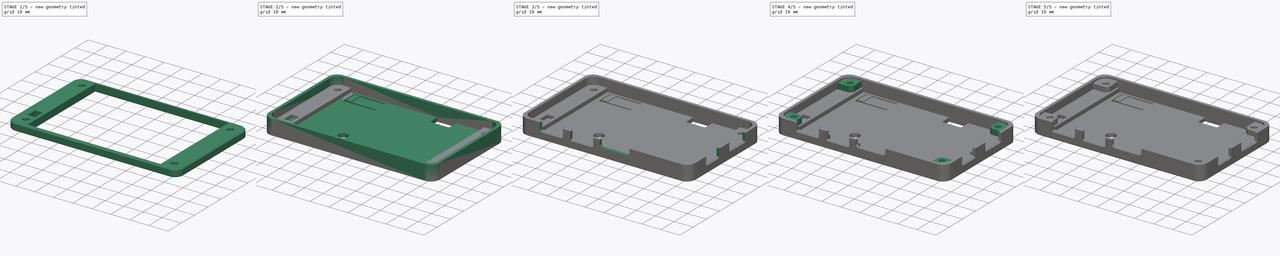
[diagram: build sequence overview — one tinted view per stage of 5, left to right]
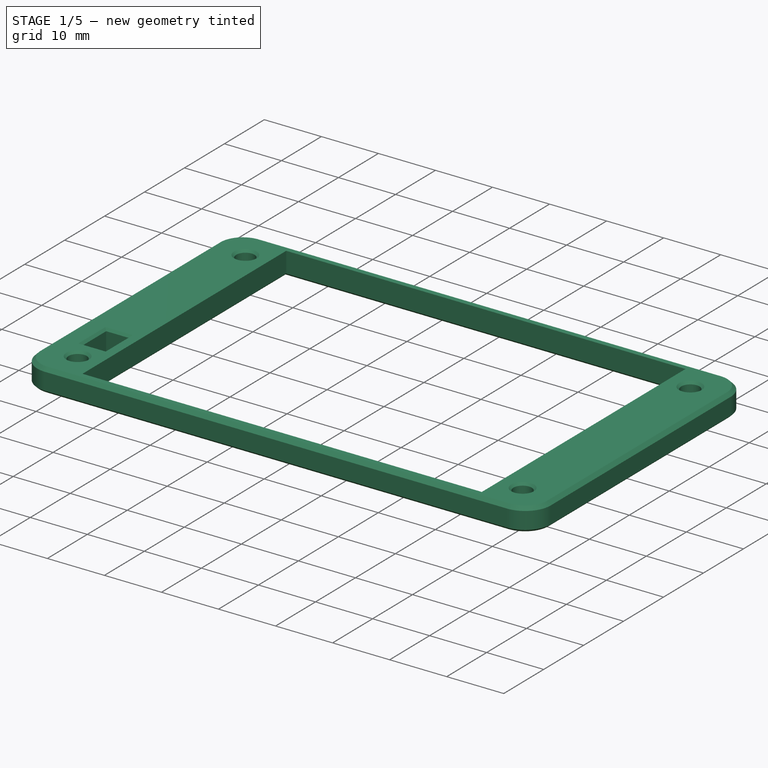
[diagram: stage 1 of 5 — iso view after this stage's code; geometry added in this stage tinted green]
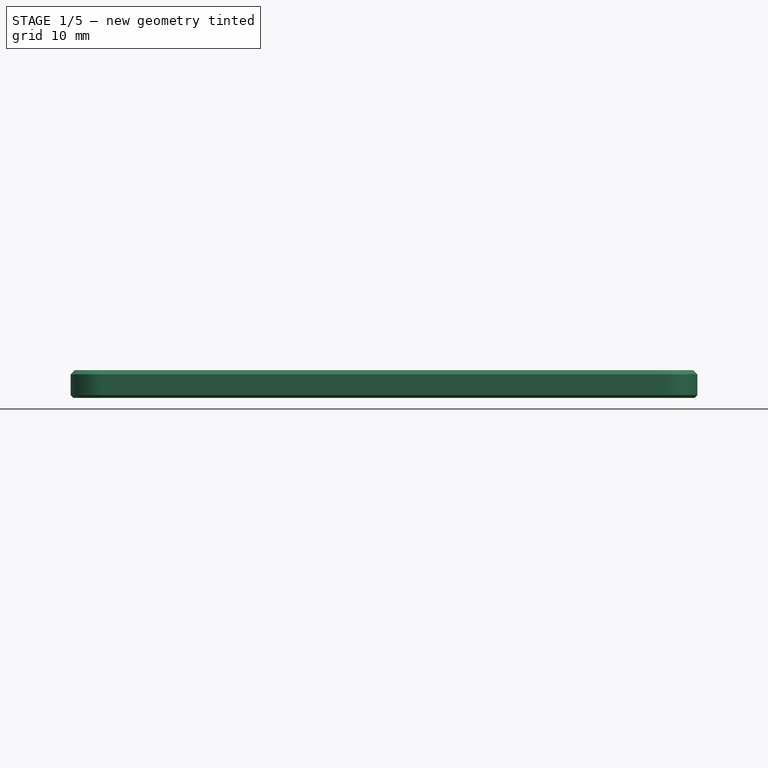
[diagram: stage 1 of 5 — front view after this stage's code; geometry added in this stage tinted green]
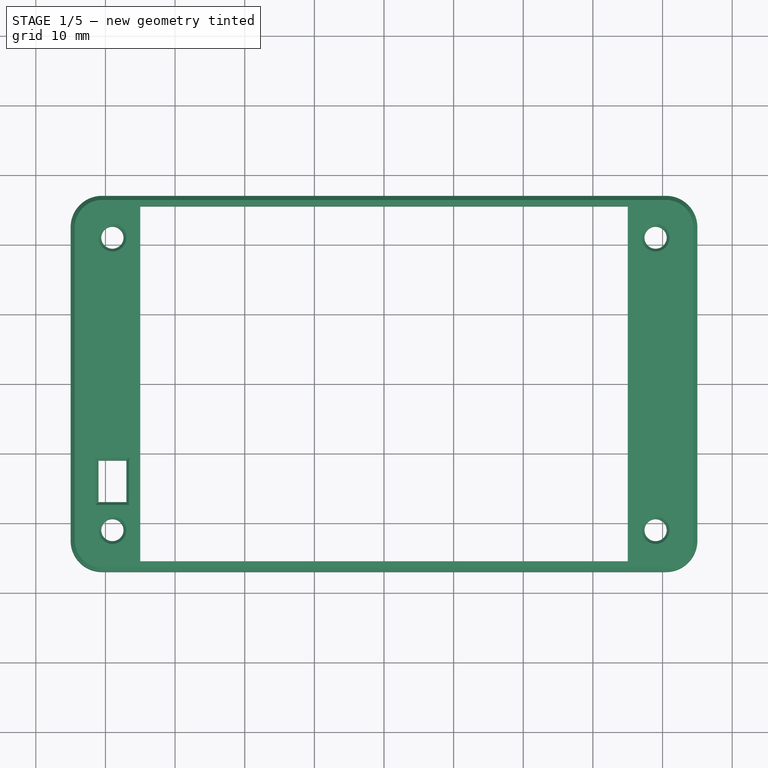
[diagram: stage 1 of 5 — top view after this stage's code; geometry added in this stage tinted green]
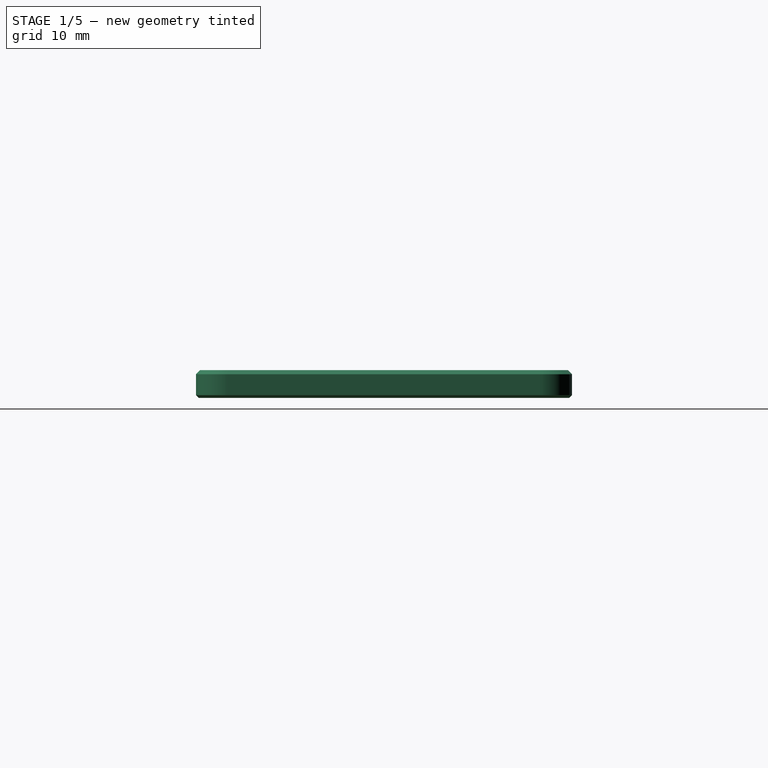
[diagram: stage 1 of 5 — right view after this stage's code; geometry added in this stage tinted green]
FCSTD DOCUMENT  (FreeCAD 1.0R39109 (Git))
Label: CYD_Case_V1
License: All rights reserved
LicenseURL: https://en.wikipedia.org/wiki/All_rights_reserved
objects: Sketcher::SketchObject×11, PartDesign::Chamfer×9, PartDesign::Pocket×6, PartDesign::Pad×5, PartDesign::Body×2, Part::Feature×1, App::Part×1
note: 85 computed .brp shape members not serialized (recipe doc carries the construction recipe); baked Part::Feature solids carry a one-line shape summary decoded from their .brp

FEATURE [Sketcher::SketchObject] Sketch017
  ArcFitTolerance = 1e-06
  AttachmentSupport = -> [XY_Plane002]
  FullyConstrained = true
  MakeInternals = false
  MapMode = 5
  sketch-geometry (13):
    g0: LineSegment StartX=-40.5 StartY=-27 StartZ=0 EndX=40.5 EndY=-27 EndZ=0
    g1: LineSegment StartX=45 StartY=-22.5 StartZ=0 EndX=45 EndY=22.5 EndZ=0
    g2: LineSegment StartX=40.5 StartY=27 StartZ=0 EndX=-40.5 EndY=27 EndZ=0
    g3: LineSegment StartX=-45 StartY=22.5 StartZ=0 EndX=-45 EndY=-22.5 EndZ=0
    g4: GeomPoint [constr] X=0 Y=0 Z=0
    g5: ArcOfCircle CenterX=-40.5 CenterY=22.5 CenterZ=0 NormalX=0 NormalY=0 NormalZ=1 AngleXU=0 Radius=4.5 StartAngle=1.5708 EndAngle=3.14159
    g6: GeomPoint [constr] X=-45 Y=27 Z=0
    g7: ArcOfCircle CenterX=-40.5 CenterY=-22.5 CenterZ=0 NormalX=0 NormalY=0 NormalZ=1 AngleXU=0 Radius=4.5 StartAngle=3.14159 EndAngle=4.71239
    g8: GeomPoint [constr] X=-45 Y=-27 Z=0
    g9: ArcOfCircle CenterX=40.5 CenterY=-22.5 CenterZ=0 NormalX=0 NormalY=0 NormalZ=1 AngleXU=0 Radius=4.5 StartAngle=4.71239 EndAngle=6.28319
    g10: GeomPoint [constr] X=45 Y=-27 Z=0
    g11: ArcOfCircle CenterX=40.5 CenterY=22.5 CenterZ=0 NormalX=0 NormalY=0 NormalZ=1 AngleXU=0 Radius=4.5 StartAngle=0 EndAngle=1.5708
    g12: GeomPoint [constr] X=45 Y=27 Z=0
  constraints (28):
    c: Horizontal(g0)
    c: Horizontal(g2)
    c: Vertical(g1)
    c: Vertical(g3)
    c: Symmetric(g12,g8,g4)
    c: Distance(g10,g8) = 90
    c: Distance(g8,g6) = 54
    c: Coincident(g4,g-1)
    c: PointOnObject(g6,g2)
    c: PointOnObject(g6,g3)
    c: Tangent(g2,g5) = -1.5708
    c: Tangent(g3,g5) = -1.5708
    c: PointOnObject(g8,g3)
    c: PointOnObject(g8,g0)
    c: Tangent(g3,g7) = -1.5708
    c: Tangent(g0,g7) = -1.5708
    c: PointOnObject(g10,g0)
    c: PointOnObject(g10,g1)
    c: Tangent(g0,g9) = -1.5708
    c: Tangent(g1,g9) = -1.5708
    c: PointOnObject(g12,g1)
    c: PointOnObject(g12,g2)
    c: Tangent(g1,g11) = -1.5708
    c: Tangent(g2,g11) = -1.5708
    c: Radius(g5) = 4.5
    c: Equal(g11,g5)
    c: Equal(g9,g5)
    c: Equal(g7,g5)
FEATURE [PartDesign::Pad] Pad007  label="Main_Pad001"
  Direction = (0,0,1)
  Length = 4
  Length2 = 10
  Profile = -> Sketch017
  ReferenceAxis = -> Sketch017 [N_Axis]
  Refine = true
  Suppressed = false
  Type = 0
FEATURE [Sketcher::SketchObject] Sketch018
  ArcFitTolerance = 1e-06
  AttachmentSupport = -> [Pad007]
  FullyConstrained = true
  MakeInternals = false
  MapMode = 5
  Placement = pos=(0,0,0) rot=(1,0,0;3.14159rad)
  sketch-geometry (18):
    g0: LineSegment StartX=-35 StartY=-25.5 StartZ=0 EndX=35 EndY=-25.5 EndZ=0
    g1: LineSegment StartX=35 StartY=-25.5 StartZ=0 EndX=35 EndY=25.5 EndZ=0
    g2: LineSegment StartX=35 StartY=25.5 StartZ=0 EndX=-35 EndY=25.5 EndZ=0
    g3: LineSegment StartX=-35 StartY=25.5 StartZ=0 EndX=-35 EndY=-25.5 EndZ=0
    g4: GeomPoint [constr] X=0 Y=0 Z=0
    g5: LineSegment StartX=-41 StartY=11 StartZ=0 EndX=-37 EndY=11 EndZ=0
    g6: LineSegment StartX=-37 StartY=11 StartZ=0 EndX=-37 EndY=17 EndZ=0
    g7: LineSegment StartX=-37 StartY=17 StartZ=0 EndX=-41 EndY=17 EndZ=0
    g8: LineSegment StartX=-41 StartY=17 StartZ=0 EndX=-41 EndY=11 EndZ=0
    g9: LineSegment [constr] StartX=-39 StartY=-21 StartZ=0 EndX=39 EndY=-21 EndZ=0
    g10: LineSegment [constr] StartX=39 StartY=-21 StartZ=0 EndX=39 EndY=21 EndZ=0
    g11: LineSegment [constr] StartX=39 StartY=21 StartZ=0 EndX=-39 EndY=21 EndZ=0
    g12: LineSegment [constr] StartX=-39 StartY=21 StartZ=0 EndX=-39 EndY=-21 EndZ=0
    g13: GeomPoint [constr] X=0 Y=0 Z=0
    g14: Circle CenterX=-39 CenterY=21 CenterZ=0 NormalX=0 NormalY=0 NormalZ=1 AngleXU=0 Radius=1.6
    g15: Circle CenterX=39 CenterY=21 CenterZ=0 NormalX=0 NormalY=0 NormalZ=1 AngleXU=0 Radius=1.6
    g16: Circle CenterX=39 CenterY=-21 CenterZ=0 NormalX=0 NormalY=0 NormalZ=1 AngleXU=0 Radius=1.6
    g17: Circle CenterX=-39 CenterY=-21 CenterZ=0 NormalX=0 NormalY=0 NormalZ=1 AngleXU=0 Radius=1.6
  constraints (44):
    c: Coincident(g0,g1)
    c: Coincident(g1,g2)
    c: Coincident(g2,g3)
    c: Coincident(g3,g0)
    c: Horizontal(g0)
    c: Horizontal(g2)
    c: Vertical(g1)
    c: Vertical(g3)
    c: Symmetric(g2,g0,g4)
    c: Distance(g1,g3) = 70
    c: Distance(g0,g2) = 51
    c: Coincident(g4,g-1)
    c: Coincident(g5,g6)
    c: Coincident(g6,g7)
    c: Coincident(g7,g8)
    c: Coincident(g8,g5)
    c: Horizontal(g5)
    c: Horizontal(g7)
    c: Vertical(g6)
    c: Vertical(g8)
    c: Distance(g6,g8) = 4
    c: Distance(g5,g7) = 6
    c: Coincident(g9,g10)
    c: Coincident(g10,g11)
    c: Coincident(g11,g12)
    c: Coincident(g12,g9)
    c: Horizontal(g9)
    c: Horizontal(g11)
    c: Vertical(g10)
    c: Vertical(g12)
    c: Symmetric(g11,g9,g13)
    c: Distance(g10,g12) = 78
    c: Distance(g9,g11) = 42
    c: Coincident(g13,g4)
    c: Coincident(g14,g11)
    c: Coincident(g15,g10)
    c: Coincident(g16,g9)
    c: Coincident(g17,g9)
    c: Diameter(g14) = 3.2
    c: Equal(g15,g14)
    c: Equal(g16,g14)
    c: Equal(g17,g14)
    c: DistanceY(g7,g2) = 8.5
    c: DistanceX(g6,g2) = 2
FEATURE [PartDesign::Pocket] Pocket005  label="IO_Screen_Screws"
  BaseFeature = -> Pad007
  Direction = (0,0,1)
  Length = 0
  Length2 = 5
  Profile = -> Sketch018
  ReferenceAxis = -> Sketch018 [N_Axis]
  Refine = true
  Suppressed = false
  Type = 3
  UpToFace = -> Pad007 [Face10]
FEATURE [PartDesign::Chamfer] Chamfer006  label="Print_Comp_Chamfer_Top"
  Angle = 45
  Base = -> Pocket005 [Face4,Edge33,Edge35,Edge34,Edge37,Edge36,Edge39,Edge44,Edge38]
  BaseFeature = -> Pocket005
  ChamferType = 0
  FlipDirection = false
  Refine = true
  Size = 0.4
  Size2 = 1
  SupportTransform = false
  Suppressed = false
  UseAllEdges = false
FEATURE [PartDesign::Body] Body  label="Base"
  AllowCompound = false
  Group = -> [Sketch,Pad,Sketch001,Pocket,Sketch002,Pocket001,Sketch003,Sketch012,Pad004,Pocket002,Chamfer,Sketch013,Pocket003,Chamfer002,Sketch014,Pad005,Sketch015,Pad006,Sketch016,Pocket004,Chamfer003,Chamfer004,Chamfer005,Chamfer007,Chamfer008]
  Origin = -> Origin001
  Tip = -> Chamfer008
FEATURE [PartDesign::Chamfer] Chamfer009  label="Outside_Chamfer_Top"
  Angle = 45
  Base = -> Chamfer006 [Edge13]
  BaseFeature = -> Chamfer006
  ChamferType = 0
  FlipDirection = false
  Refine = true
  Size = 0.6
  Size2 = 1
  SupportTransform = false
  Suppressed = false
  UseAllEdges = false
FEATURE [PartDesign::Body] Body001  label="Top"
  AllowCompound = false
  Group = -> [Sketch017,Pad007,Sketch018,Pocket005,Chamfer006,Chamfer009]
  Origin = -> Origin002
  Placement = pos=(0,0,8.5) rot=(0,0,1;0rad)
  Tip = -> Chamfer009
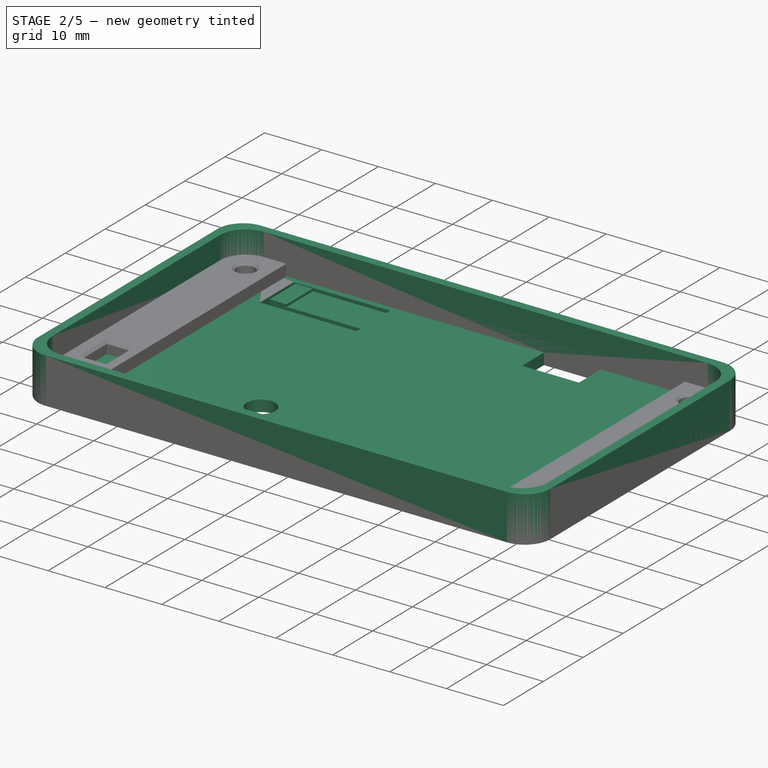
[diagram: stage 2 of 5 — iso view after this stage's code; geometry added in this stage tinted green]
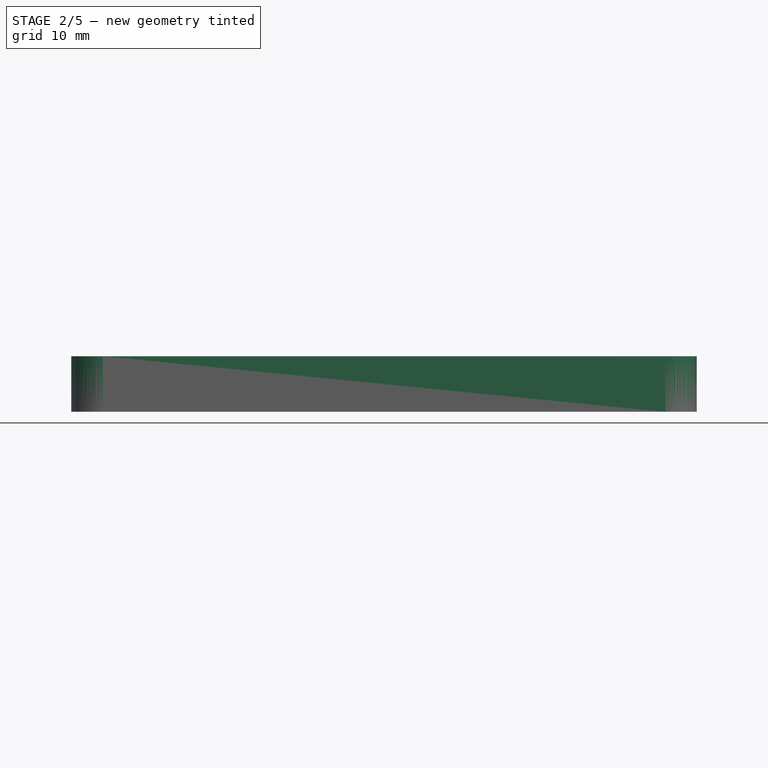
[diagram: stage 2 of 5 — front view after this stage's code; geometry added in this stage tinted green]
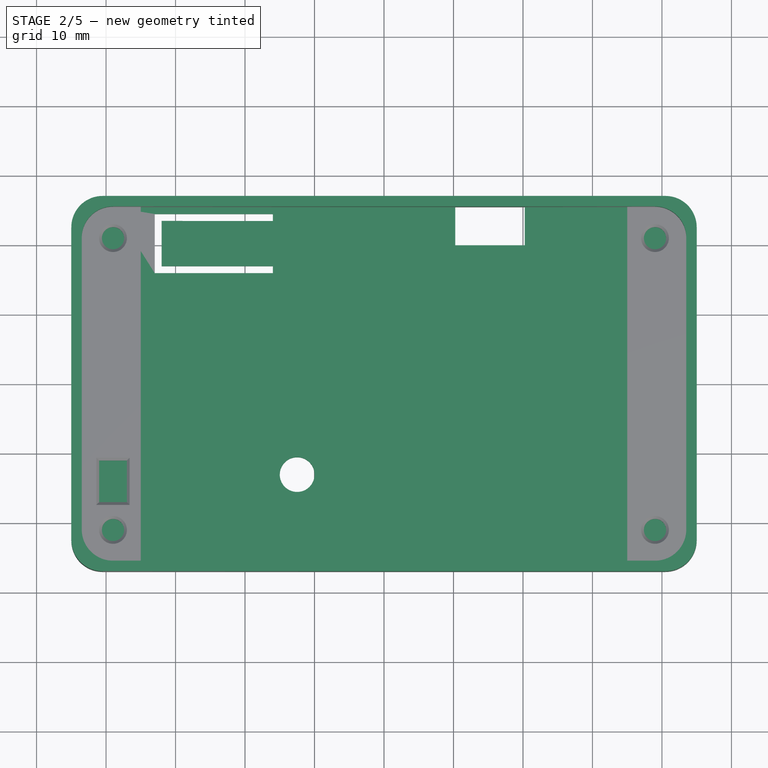
[diagram: stage 2 of 5 — top view after this stage's code; geometry added in this stage tinted green]
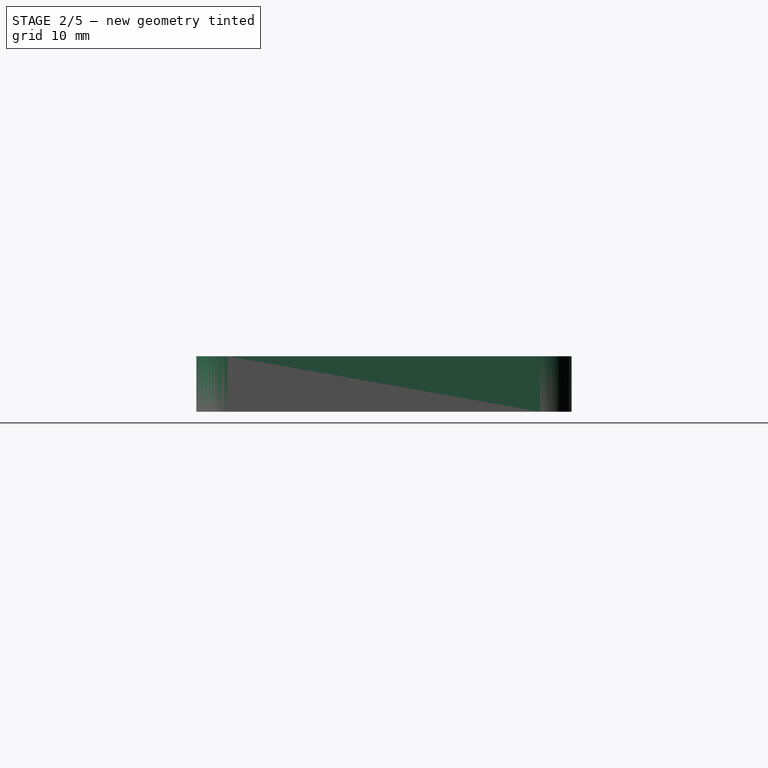
[diagram: stage 2 of 5 — right view after this stage's code; geometry added in this stage tinted green]
FEATURE [Sketcher::SketchObject] Sketch
  ArcFitTolerance = 1e-06
  AttachmentSupport = -> [XY_Plane001]
  FullyConstrained = true
  MakeInternals = false
  MapMode = 5
  sketch-geometry (13):
    g0: LineSegment StartX=-40.5 StartY=-27 StartZ=0 EndX=40.5 EndY=-27 EndZ=0
    g1: LineSegment StartX=45 StartY=-22.5 StartZ=0 EndX=45 EndY=22.5 EndZ=0
    g2: LineSegment StartX=40.5 StartY=27 StartZ=0 EndX=-40.5 EndY=27 EndZ=0
    g3: LineSegment StartX=-45 StartY=22.5 StartZ=0 EndX=-45 EndY=-22.5 EndZ=0
    g4: GeomPoint [constr] X=0 Y=0 Z=0
    g5: ArcOfCircle CenterX=-40.5 CenterY=22.5 CenterZ=0 NormalX=0 NormalY=0 NormalZ=1 AngleXU=0 Radius=4.5 StartAngle=1.5708 EndAngle=3.14159
    g6: GeomPoint [constr] X=-45 Y=27 Z=0
    g7: ArcOfCircle CenterX=40.5 CenterY=22.5 CenterZ=0 NormalX=0 NormalY=0 NormalZ=1 AngleXU=0 Radius=4.5 StartAngle=7.66e-14 EndAngle=1.5708
    g8: GeomPoint [constr] X=45 Y=27 Z=0
    g9: ArcOfCircle CenterX=40.5 CenterY=-22.5 CenterZ=0 NormalX=0 NormalY=0 NormalZ=1 AngleXU=0 Radius=4.5 StartAngle=4.71239 EndAngle=6.28319
    g10: GeomPoint [constr] X=45 Y=-27 Z=0
    g11: ArcOfCircle CenterX=-40.5 CenterY=-22.5 CenterZ=0 NormalX=0 NormalY=0 NormalZ=1 AngleXU=0 Radius=4.5 StartAngle=3.14159 EndAngle=4.71239
    g12: GeomPoint [constr] X=-45 Y=-27 Z=0
  constraints (28):
    c: Horizontal(g0)
    c: Horizontal(g2)
    c: Vertical(g1)
    c: Vertical(g3)
    c: Symmetric(g8,g12,g4)
    c: Distance(g10,g12) = 90
    c: Distance(g12,g6) = 54
    c: Coincident(g4,g-1)
    c: PointOnObject(g6,g2)
    c: PointOnObject(g6,g3)
    c: Tangent(g2,g5) = -1.5708
    c: Tangent(g3,g5) = -1.5708
    c: PointOnObject(g8,g2)
    c: PointOnObject(g8,g1)
    c: Tangent(g2,g7) = -1.5708
    c: Tangent(g1,g7) = -1.5708
    c: PointOnObject(g10,g0)
    c: PointOnObject(g10,g1)
    c: Tangent(g0,g9) = -1.5708
    c: Tangent(g1,g9) = -1.5708
    c: PointOnObject(g12,g0)
    c: PointOnObject(g12,g3)
    c: Tangent(g0,g11) = -1.5708
    c: Tangent(g3,g11) = -1.5708
    c: Radius(g5) = 4.5
    c: Equal(g7,g5)
    c: Equal(g9,g5)
    c: Equal(g11,g5)
FEATURE [PartDesign::Pad] Pad  label="Main_Pad"
  Direction = (0,0,1)
  Length = 8
  Length2 = 10
  Profile = -> Sketch
  ReferenceAxis = -> Sketch [N_Axis]
  Refine = true
  Suppressed = false
  Type = 0
FEATURE [Sketcher::SketchObject] Sketch001
  ArcFitTolerance = 1e-06
  AttachmentSupport = -> [Pad]
  FullyConstrained = true
  MakeInternals = false
  MapMode = 5
  Placement = pos=(0,0,8) rot=(0,0,1;0rad)
  sketch-geometry (13):
    g0: LineSegment StartX=-39 StartY=-25.5 StartZ=0 EndX=39 EndY=-25.5 EndZ=0
    g1: LineSegment StartX=43.5 StartY=-21 StartZ=0 EndX=43.5 EndY=21 EndZ=0
    g2: LineSegment StartX=39 StartY=25.5 StartZ=0 EndX=-39 EndY=25.5 EndZ=0
    g3: LineSegment StartX=-43.5 StartY=21 StartZ=0 EndX=-43.5 EndY=-21 EndZ=0
    g4: GeomPoint [constr] X=0 Y=0 Z=0
    g5: ArcOfCircle CenterX=-39 CenterY=21 CenterZ=0 NormalX=0 NormalY=0 NormalZ=1 AngleXU=0 Radius=4.5 StartAngle=1.5708 EndAngle=3.14159
    g6: GeomPoint [constr] X=-43.5 Y=25.5 Z=0
    g7: ArcOfCircle CenterX=-39 CenterY=-21 CenterZ=0 NormalX=0 NormalY=0 NormalZ=1 AngleXU=0 Radius=4.5 StartAngle=3.14159 EndAngle=4.71239
    g8: GeomPoint [constr] X=-43.5 Y=-25.5 Z=0
    g9: ArcOfCircle CenterX=39 CenterY=-21 CenterZ=0 NormalX=0 NormalY=0 NormalZ=1 AngleXU=0 Radius=4.5 StartAngle=4.71239 EndAngle=6.28319
    g10: GeomPoint [constr] X=43.5 Y=-25.5 Z=0
    g11: ArcOfCircle CenterX=39 CenterY=21 CenterZ=0 NormalX=0 NormalY=0 NormalZ=1 AngleXU=0 Radius=4.5 StartAngle=1e-16 EndAngle=1.5708
    g12: GeomPoint [constr] X=43.5 Y=25.5 Z=0
  constraints (28):
    c: Horizontal(g0)
    c: Horizontal(g2)
    c: Vertical(g1)
    c: Vertical(g3)
    c: Symmetric(g12,g8,g4)
    c: Distance(g10,g8) = 87
    c: Distance(g8,g6) = 51
    c: Coincident(g4,g-1)
    c: PointOnObject(g6,g2)
    c: PointOnObject(g6,g3)
    c: Tangent(g2,g5) = -1.5708
    c: Tangent(g3,g5) = -1.5708
    c: PointOnObject(g8,g3)
    c: PointOnObject(g8,g0)
    c: Tangent(g3,g7) = -1.5708
    c: Tangent(g0,g7) = -1.5708
    c: PointOnObject(g10,g0)
    c: PointOnObject(g10,g1)
    c: Tangent(g0,g9) = -1.5708
    c: Tangent(g1,g9) = -1.5708
    c: PointOnObject(g12,g1)
    c: PointOnObject(g12,g2)
    c: Tangent(g1,g11) = -1.5708
    c: Tangent(g2,g11) = -1.5708
    c: Radius(g5) = 4.5
    c: Equal(g11,g5)
    c: Equal(g9,g5)
    c: Equal(g7,g5)
FEATURE [PartDesign::Pocket] Pocket  label="Main_Pocket"
  BaseFeature = -> Pad
  Direction = (0,0,-1)
  Length = 6
  Length2 = 5
  Profile = -> Sketch001
  ReferenceAxis = -> Sketch001 [N_Axis]
  Refine = true
  Suppressed = false
  Type = 0
FEATURE [Sketcher::SketchObject] Sketch002
  ArcFitTolerance = 1e-06
  AttachmentSupport = -> [Pocket]
  FullyConstrained = true
  MakeInternals = false
  MapMode = 5
  Placement = pos=(0,0,0) rot=(1,0,0;3.14159rad)
  sketch-geometry (14):
    g0: LineSegment StartX=-16 StartY=-23.5 StartZ=0 EndX=-32 EndY=-23.5 EndZ=0
    g1: LineSegment StartX=-32 StartY=-23.5 StartZ=0 EndX=-32 EndY=-17 EndZ=0
    g2: LineSegment StartX=-32 StartY=-17 StartZ=0 EndX=-16 EndY=-17 EndZ=0
    g3: LineSegment StartX=-16 StartY=-17 StartZ=0 EndX=-16 EndY=-16 EndZ=0
    g4: LineSegment StartX=-16 StartY=-16 StartZ=0 EndX=-33 EndY=-16 EndZ=0
    g5: LineSegment StartX=-33 StartY=-16 StartZ=0 EndX=-33 EndY=-24.5 EndZ=0
    g6: LineSegment StartX=-33 StartY=-24.5 StartZ=0 EndX=-16 EndY=-24.5 EndZ=0
    g7: LineSegment StartX=-16 StartY=-24.5 StartZ=0 EndX=-16 EndY=-23.5 EndZ=0
    g8: Circle CenterX=-12.5 CenterY=13 CenterZ=0 NormalX=0 NormalY=0 NormalZ=1 AngleXU=0 Radius=2.5
    g9: GeomPoint [constr] X=0 Y=0 Z=0
    g10: LineSegment StartX=10.25 StartY=-20 StartZ=0 EndX=10.25 EndY=-25.5 EndZ=0
    g11: LineSegment StartX=10.25 StartY=-25.5 StartZ=0 EndX=20.25 EndY=-25.5 EndZ=0
    g12: LineSegment StartX=20.25 StartY=-25.5 StartZ=0 EndX=20.25 EndY=-20 EndZ=0
    g13: LineSegment StartX=20.25 StartY=-20 StartZ=0 EndX=10.25 EndY=-20 EndZ=0
  constraints (40):
    c: Horizontal(g0)
    c: Coincident(g0,g1)
    c: Vertical(g1)
    c: Coincident(g1,g2)
    c: Horizontal(g2)
    c: Coincident(g2,g3)
    c: Vertical(g3)
    c: Coincident(g3,g4)
    c: Horizontal(g4)
    c: Coincident(g4,g5)
    c: Vertical(g5)
    c: Coincident(g5,g6)
    c: Horizontal(g6)
    c: Coincident(g6,g7)
    c: Coincident(g7,g0)
    c: Vertical(g7)
    c: Distance(g-2,g1) = 32
    c: Distance(g1,g5) = 1
    c: Distance(g-2,g3) = 16
    c: Distance(g-2,g7) = 16
    c: DistanceY(g3,g3) = 1
    c: DistanceY(g7,g7) = 1
    c: Distance(g2,g0) = 6.5
    c: Distance(g-1,g4) = 16
    c: Diameter(g8) = 5
    c: Distance(g8,g-2) = 12.5
    c: Distance(g8,g-1) = 13
    c: Coincident(g9,g-1)
    c: Coincident(g10,g11)
    c: Coincident(g11,g12)
    c: Coincident(g12,g13)
    c: Coincident(g13,g10)
    c: Vertical(g10)
    c: Vertical(g12)
    c: Horizontal(g11)
    c: Horizontal(g13)
    c: Distance(g10,g12) = 10
    c: Distance(g11,g13) = 5.5
    c: Distance(g-1,g13) = 20
    c: Distance(g-2,g10) = 10.25
FEATURE [PartDesign::Pocket] Pocket001  label="Back_IO"
  BaseFeature = -> Pocket
  Direction = (0,0,1)
  Length = 0
  Length2 = 5
  Profile = -> Sketch002
  ReferenceAxis = -> Sketch002 [N_Axis]
  Refine = true
  Suppressed = false
  Type = 3
  UpToFace = -> Pocket [Face19]
FEATURE [Sketcher::SketchObject] Sketch012
  ArcFitTolerance = 1e-06
  AttachmentSupport = -> [Pocket001]
  FullyConstrained = true
  MakeInternals = false
  MapMode = 5
  Placement = pos=(0,0,2) rot=(0,0,1;0rad)
  sketch-geometry (4):
    g0: LineSegment StartX=-32 StartY=23.5 StartZ=0 EndX=-32 EndY=17 EndZ=0
    g1: LineSegment StartX=-32 StartY=17 StartZ=0 EndX=-29 EndY=17 EndZ=0
    g2: LineSegment StartX=-29 StartY=17 StartZ=0 EndX=-29 EndY=23.5 EndZ=0
    g3: LineSegment StartX=-29 StartY=23.5 StartZ=0 EndX=-32 EndY=23.5 EndZ=0
  constraints (11):
    c: Coincident(g0,g1)
    c: Coincident(g1,g2)
    c: Coincident(g2,g3)
    c: Coincident(g3,g0)
    c: Vertical(g0)
    c: Vertical(g2)
    c: Horizontal(g1)
    c: Horizontal(g3)
    c: Coincident(g0,g-3)
    c: PointOnObject(g1,g-4)
    c: DistanceX(g3,g3) = 3
FEATURE [PartDesign::Pad] Pad004  label="BOOT_Lever_Pad"
  BaseFeature = -> Pocket001
  Direction = (0,0,1)
  Length = 0.4
  Length2 = 10
  Profile = -> Sketch012
  ReferenceAxis = -> Sketch012 [N_Axis]
  Refine = true
  Suppressed = false
  Type = 0
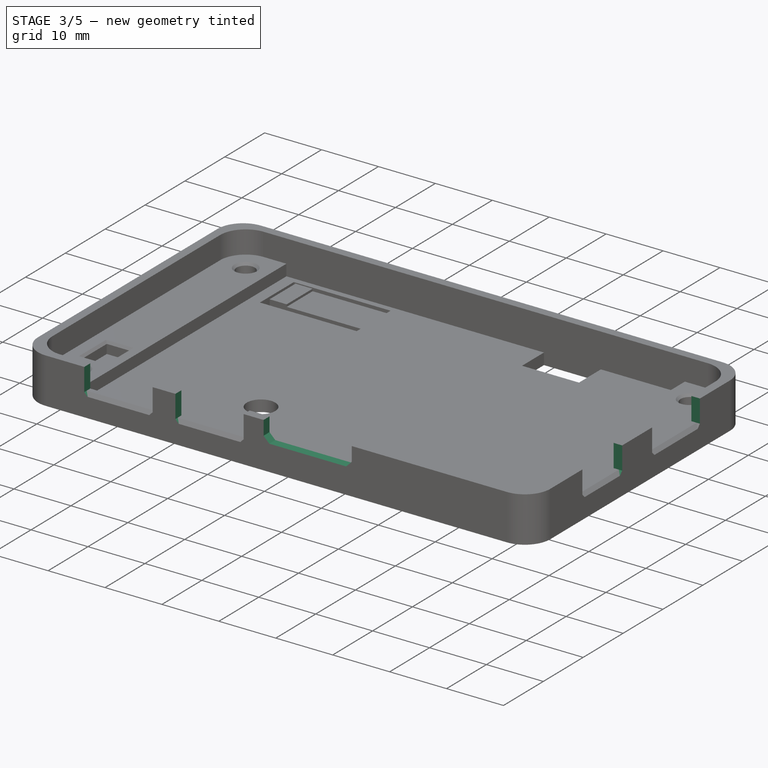
[diagram: stage 3 of 5 — iso view after this stage's code; geometry added in this stage tinted green]
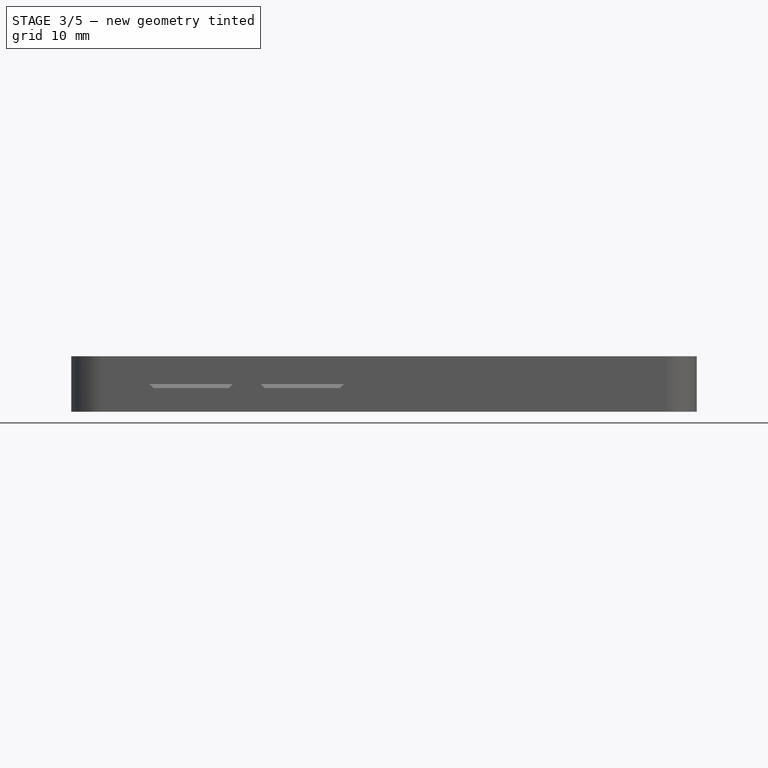
[diagram: stage 3 of 5 — front view after this stage's code; geometry added in this stage tinted green]
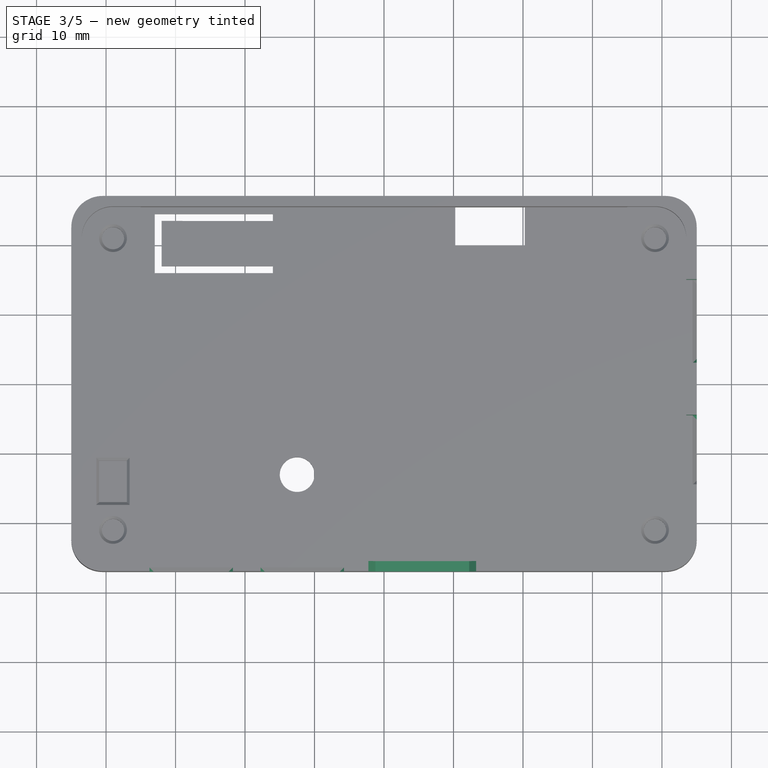
[diagram: stage 3 of 5 — top view after this stage's code; geometry added in this stage tinted green]
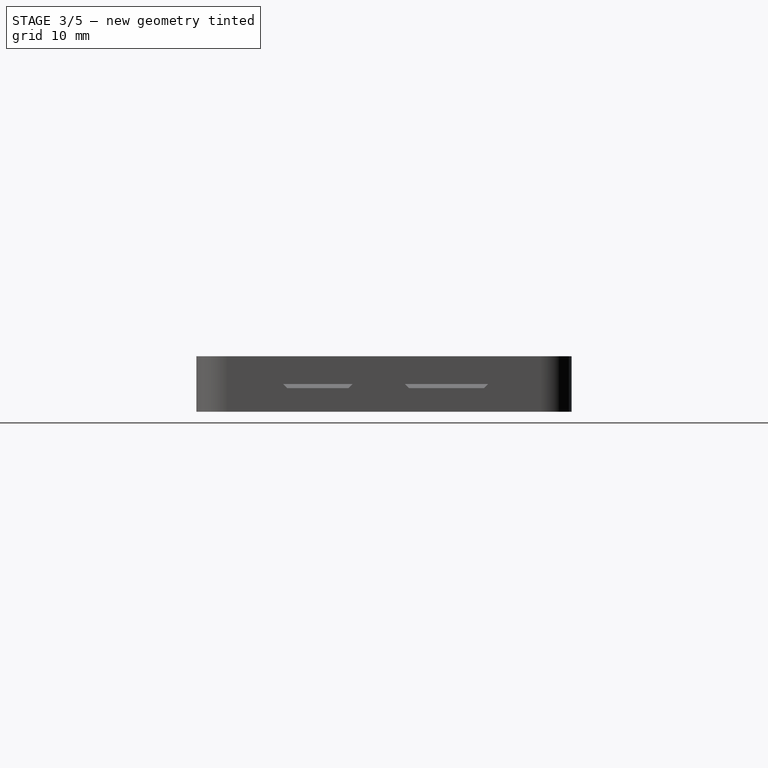
[diagram: stage 3 of 5 — right view after this stage's code; geometry added in this stage tinted green]
FEATURE [Sketcher::SketchObject] Sketch003
  ArcFitTolerance = 1e-06
  AttachmentSupport = -> [Pocket001]
  ExternalGeometry = -> [Pocket001]
  FullyConstrained = true
  MakeInternals = false
  MapMode = 5
  Placement = pos=(0,0,8) rot=(0,0,1;0rad)
  sketch-geometry (18):
    g0: LineSegment StartX=-17.75 StartY=-27 StartZ=0 EndX=-5.75 EndY=-27 EndZ=0
    g1: LineSegment StartX=-5.75 StartY=-27 StartZ=0 EndX=-5.75 EndY=-25.5 EndZ=0
    g2: LineSegment StartX=-5.75 StartY=-25.5 StartZ=0 EndX=-17.75 EndY=-25.5 EndZ=0
    g3: LineSegment StartX=-17.75 StartY=-25.5 StartZ=0 EndX=-17.75 EndY=-27 EndZ=0
    g4: GeomPoint [constr] X=-11.75 Y=-26.25 Z=0
    g5: LineSegment StartX=45 StartY=-14.5 StartZ=0 EndX=45 EndY=-4.5 EndZ=0
    g6: LineSegment StartX=45 StartY=-4.5 StartZ=0 EndX=43.5 EndY=-4.5 EndZ=0
    g7: LineSegment StartX=43.5 StartY=-4.5 StartZ=0 EndX=43.5 EndY=-14.5 EndZ=0
    g8: LineSegment StartX=43.5 StartY=-14.5 StartZ=0 EndX=45 EndY=-14.5 EndZ=0
    g9: GeomPoint [constr] X=44.25 Y=-9.5 Z=0
    g10: LineSegment StartX=-33.75 StartY=-27 StartZ=0 EndX=-21.75 EndY=-27 EndZ=0
    g11: LineSegment StartX=-21.75 StartY=-27 StartZ=0 EndX=-21.75 EndY=-25.5 EndZ=0
    g12: LineSegment StartX=-21.75 StartY=-25.5 StartZ=0 EndX=-33.75 EndY=-25.5 EndZ=0
    g13: LineSegment StartX=-33.75 StartY=-25.5 StartZ=0 EndX=-33.75 EndY=-27 EndZ=0
    g14: LineSegment StartX=43.5 StartY=3 StartZ=0 EndX=45 EndY=3 EndZ=0
    g15: LineSegment StartX=45 StartY=3 StartZ=0 EndX=45 EndY=15 EndZ=0
    g16: LineSegment StartX=45 StartY=15 StartZ=0 EndX=43.5 EndY=15 EndZ=0
    g17: LineSegment StartX=43.5 StartY=15 StartZ=0 EndX=43.5 EndY=3 EndZ=0
  constraints (50):
    c: Coincident(g0,g1)
    c: Coincident(g1,g2)
    c: Coincident(g2,g3)
    c: Coincident(g3,g0)
    c: Horizontal(g0)
    c: Horizontal(g2)
    c: Vertical(g1)
    c: Vertical(g3)
    c: Symmetric(g2,g0,g4)
    c: Distance(g1,g3) = 12
    c: PointOnObject(g2,g-3)
    c: PointOnObject(g0,g-4)
    c: Distance(g4,g-2) = 11.75
    c: Coincident(g5,g6)
    c: Coincident(g6,g7)
    c: Coincident(g7,g8)
    c: Coincident(g8,g5)
    c: Vertical(g5)
    c: Vertical(g7)
    c: Horizontal(g6)
    c: Horizontal(g8)
    c: Symmetric(g7,g5,g9)
    c: PointOnObject(g7,g-5)
    c: PointOnObject(g5,g-6)
    c: DistanceY(g7,g7) = 10
    c: Distance(g9,g-1) = 9.5
    c: Coincident(g10,g11)
    c: Coincident(g11,g12)
    c: Coincident(g12,g13)
    c: Coincident(g13,g10)
    c: Horizontal(g10)
    c: Horizontal(g12)
    c: Vertical(g11)
    c: Vertical(g13)
    c: PointOnObject(g10,g-4)
    c: DistanceX(g10,g10) = 12
    c: DistanceX(g10,g0) = 4
    c: PointOnObject(g12,g-3)
    c: Coincident(g14,g15)
    c: Coincident(g15,g16)
    c: Coincident(g16,g17)
    c: Coincident(g17,g14)
    c: Horizontal(g14)
    c: Horizontal(g16)
    c: Vertical(g15)
    c: Vertical(g17)
    c: PointOnObject(g14,g-5)
    c: PointOnObject(g15,g-6)
    c: DistanceY(g15,g15) = 12
    c: Distance(g14,g-1) = 3
FEATURE [Part::Feature] Part__Feature  label="Display"
  shape: bbox 86.6 x 50 x 9.8 mm, 98 faces (baked)
FEATURE [App::Part] Cheap_Yellow_Display_v16  label="Cheap Yellow Display v16"
  Group = -> [Part__Feature]
  Origin = -> Origin
  Placement = pos=(0,0,7) rot=(0,0,1;0rad)
FEATURE [PartDesign::Pocket] Pocket002  label="JST_USB_Holes"
  BaseFeature = -> Pad004
  Direction = (0,0,-1)
  Length = 5
  Length2 = 5
  Profile = -> Sketch003
  ReferenceAxis = -> Sketch003 [N_Axis]
  Refine = true
  Suppressed = false
  Type = 0
FEATURE [PartDesign::Chamfer] Chamfer  label="JST_USB_Chamfers"
  Angle = 45
  Base = -> Pocket002 [Edge139,Edge44,Edge42,Edge128,Edge52,Edge129,Edge136,Edge50]
  BaseFeature = -> Pocket002
  ChamferType = 0
  FlipDirection = false
  Refine = true
  Size = 1
  Size2 = 1
  SupportTransform = false
  Suppressed = false
  UseAllEdges = false
FEATURE [Sketcher::SketchObject] Sketch013
  ArcFitTolerance = 1e-06
  AttachmentSupport = -> [Chamfer]
  FullyConstrained = true
  MakeInternals = false
  MapMode = 5
  Placement = pos=(0,0,8) rot=(0,0,1;0rad)
  sketch-geometry (5):
    g0: LineSegment StartX=-2.25 StartY=-27 StartZ=0 EndX=13.25 EndY=-27 EndZ=0
    g1: LineSegment StartX=13.25 StartY=-27 StartZ=0 EndX=13.25 EndY=-25.5 EndZ=0
    g2: LineSegment StartX=13.25 StartY=-25.5 StartZ=0 EndX=-2.25 EndY=-25.5 EndZ=0
    g3: LineSegment StartX=-2.25 StartY=-25.5 StartZ=0 EndX=-2.25 EndY=-27 EndZ=0
    g4: GeomPoint [constr] X=5.5 Y=-26.25 Z=0
  constraints (13):
    c: Coincident(g0,g1)
    c: Coincident(g1,g2)
    c: Coincident(g2,g3)
    c: Coincident(g3,g0)
    c: Horizontal(g0)
    c: Horizontal(g2)
    c: Vertical(g1)
    c: Vertical(g3)
    c: Symmetric(g2,g0,g4)
    c: PointOnObject(g2,g-3)
    c: PointOnObject(g0,g-4)
    c: DistanceX(g0,g0) = 15.5
    c: Distance(g4,g-2) = 5.5
FEATURE [PartDesign::Pocket] Pocket003  label="SD_Hole"
  BaseFeature = -> Chamfer
  Direction = (0,0,-1)
  Length = 3.5
  Length2 = 5
  Profile = -> Sketch013
  ReferenceAxis = -> Sketch013 [N_Axis]
  Refine = true
  Suppressed = false
  Type = 0
FEATURE [PartDesign::Chamfer] Chamfer002  label="SD_Chamfer"
  Angle = 45
  Base = -> Pocket003 [Edge88,Edge86]
  BaseFeature = -> Pocket003
  ChamferType = 0
  FlipDirection = false
  Refine = true
  Size = 1
  Size2 = 1
  SupportTransform = false
  Suppressed = false
  UseAllEdges = false
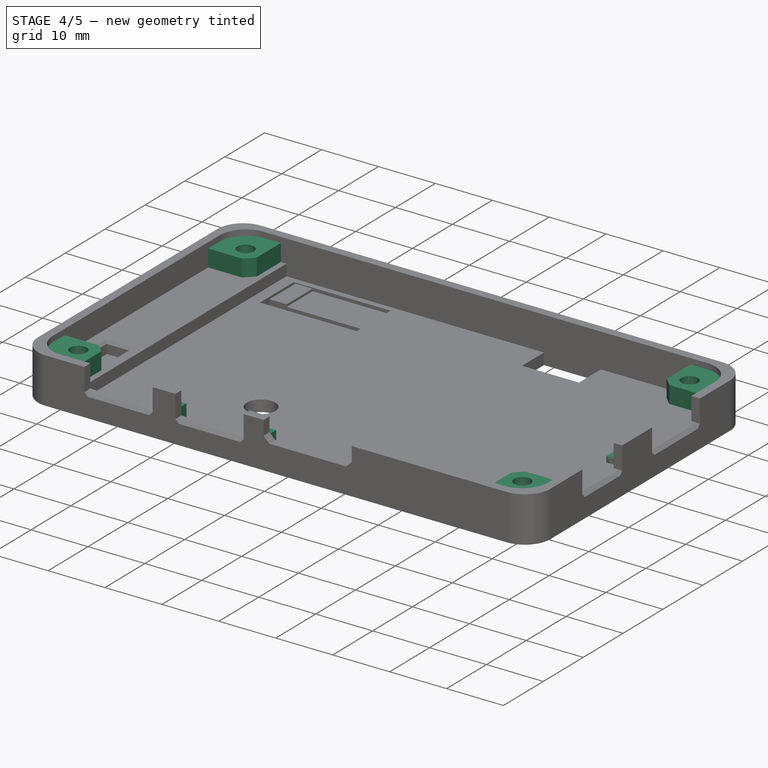
[diagram: stage 4 of 5 — iso view after this stage's code; geometry added in this stage tinted green]
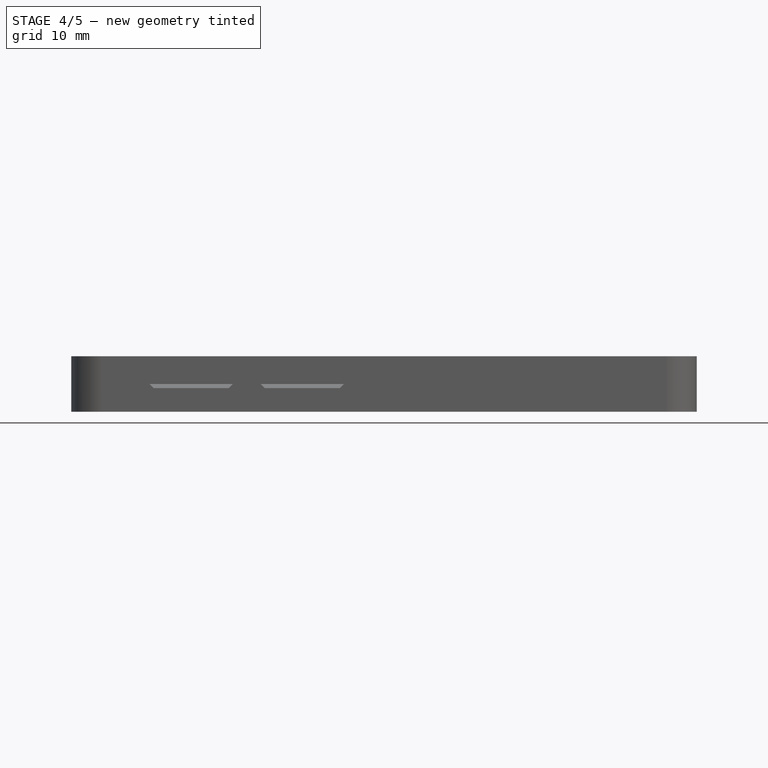
[diagram: stage 4 of 5 — front view after this stage's code; geometry added in this stage tinted green]
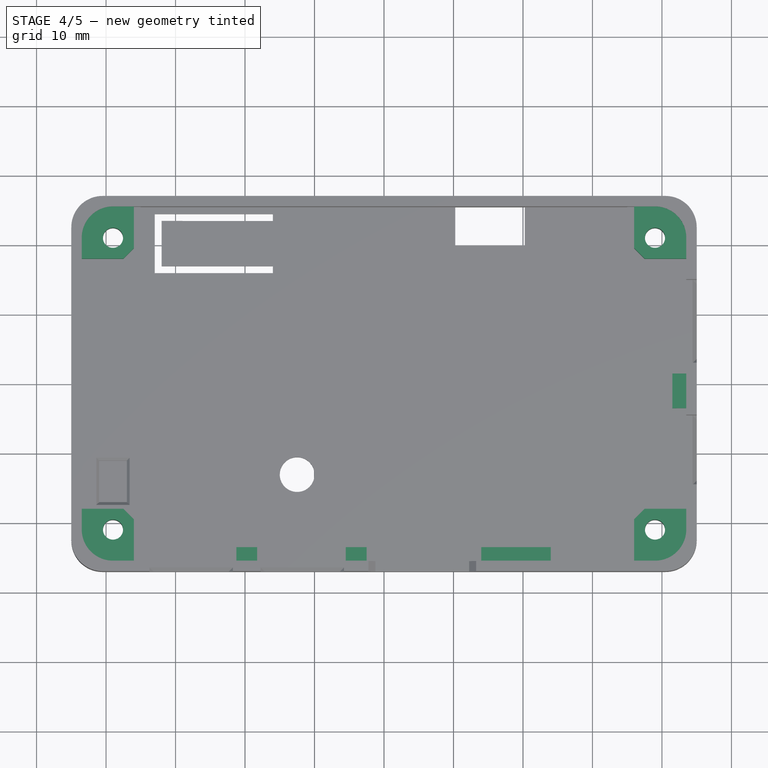
[diagram: stage 4 of 5 — top view after this stage's code; geometry added in this stage tinted green]
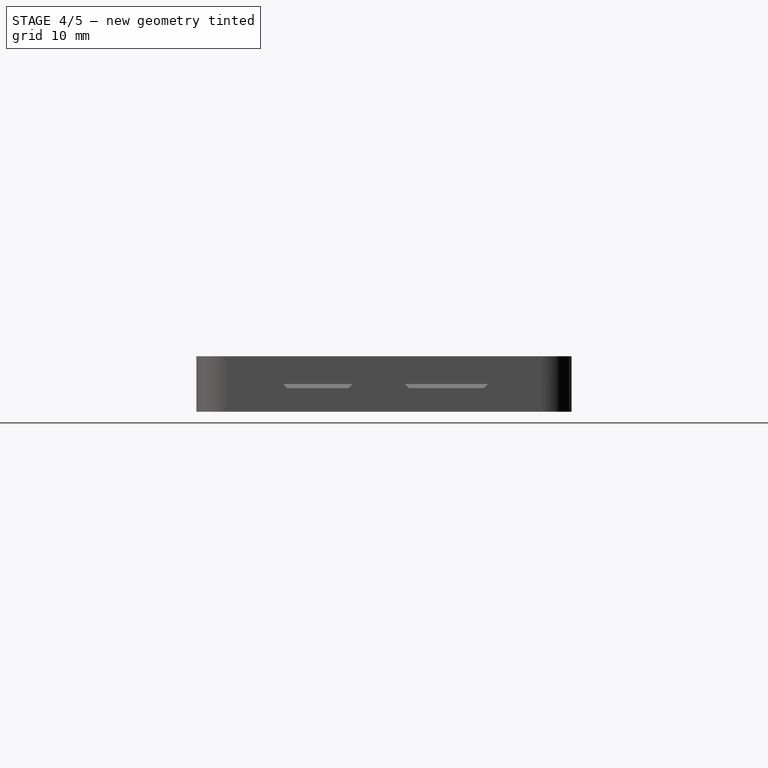
[diagram: stage 4 of 5 — right view after this stage's code; geometry added in this stage tinted green]
FEATURE [Sketcher::SketchObject] Sketch014
  ArcFitTolerance = 1e-06
  AttachmentSupport = -> [Chamfer002]
  ExternalGeometry = -> [Chamfer002]
  FullyConstrained = true
  MakeInternals = false
  MapMode = 5
  Placement = pos=(0,0,2) rot=(0,0,1;0rad)
  sketch-geometry (16):
    g0: LineSegment StartX=24 StartY=-25.5 StartZ=0 EndX=24 EndY=-23.5 EndZ=0
    g1: LineSegment StartX=24 StartY=-23.5 StartZ=0 EndX=14 EndY=-23.5 EndZ=0
    g2: LineSegment StartX=14 StartY=-23.5 StartZ=0 EndX=14 EndY=-25.5 EndZ=0
    g3: LineSegment StartX=14 StartY=-25.5 StartZ=0 EndX=24 EndY=-25.5 EndZ=0
    g4: LineSegment StartX=-5.5 StartY=-25.5 StartZ=0 EndX=-2.5 EndY=-25.5 EndZ=0
    g5: LineSegment StartX=-2.5 StartY=-25.5 StartZ=0 EndX=-2.5 EndY=-23.5 EndZ=0
    g6: LineSegment StartX=-2.5 StartY=-23.5 StartZ=0 EndX=-5.5 EndY=-23.5 EndZ=0
    g7: LineSegment StartX=-5.5 StartY=-23.5 StartZ=0 EndX=-5.5 EndY=-25.5 EndZ=0
    g8: LineSegment StartX=-18.25 StartY=-25.5 StartZ=0 EndX=-18.25 EndY=-23.5 EndZ=0
    g9: LineSegment StartX=-18.25 StartY=-23.5 StartZ=0 EndX=-21.25 EndY=-23.5 EndZ=0
    g10: LineSegment StartX=-21.25 StartY=-23.5 StartZ=0 EndX=-21.25 EndY=-25.5 EndZ=0
    g11: LineSegment StartX=-21.25 StartY=-25.5 StartZ=0 EndX=-18.25 EndY=-25.5 EndZ=0
    g12: LineSegment StartX=43.5 StartY=1.5 StartZ=0 EndX=41.5 EndY=1.5 EndZ=0
    g13: LineSegment StartX=41.5 StartY=1.5 StartZ=0 EndX=41.5 EndY=-3.5 EndZ=0
    g14: LineSegment StartX=41.5 StartY=-3.5 StartZ=0 EndX=43.5 EndY=-3.5 EndZ=0
    g15: LineSegment StartX=43.5 StartY=-3.5 StartZ=0 EndX=43.5 EndY=1.5 EndZ=0
  constraints (48):
    c: Coincident(g0,g1)
    c: Coincident(g1,g2)
    c: Coincident(g2,g3)
    c: Coincident(g3,g0)
    c: Vertical(g0)
    c: Vertical(g2)
    c: Horizontal(g1)
    c: Horizontal(g3)
    c: Distance(g0,g2) = 10
    c: Distance(g1,g3) = 2
    c: PointOnObject(g0,g-3)
    c: Coincident(g4,g5)
    c: Coincident(g5,g6)
    c: Coincident(g6,g7)
    c: Coincident(g7,g4)
    c: Horizontal(g4)
    c: Horizontal(g6)
    c: Vertical(g5)
    c: Vertical(g7)
    c: Distance(g5,g7) = 3
    c: Distance(g4,g6) = 2
    c: PointOnObject(g4,g-3)
    c: Coincident(g8,g9)
    c: Coincident(g9,g10)
    c: Coincident(g10,g11)
    c: Coincident(g11,g8)
    c: Vertical(g8)
    c: Vertical(g10)
    c: Horizontal(g9)
    c: Horizontal(g11)
    c: Distance(g8,g10) = 3
    c: Distance(g9,g11) = 2
    c: PointOnObject(g8,g-3)
    c: Coincident(g12,g13)
    c: Coincident(g13,g14)
    c: Coincident(g14,g15)
    c: Coincident(g15,g12)
    c: Horizontal(g12)
    c: Horizontal(g14)
    c: Vertical(g13)
    c: Vertical(g15)
    c: Distance(g13,g15) = 2
    c: Distance(g12,g14) = 5
    c: PointOnObject(g12,g-4)
    c: Distance(g0,g-4) = 19.5
    c: DistanceX(g5,g1) = 16.5
    c: DistanceX(g8,g6) = 12.75
    c: Distance(g14,g-3) = 22
FEATURE [PartDesign::Pad] Pad005  label="Wall_Supports"
  BaseFeature = -> Chamfer002
  Direction = (0,0,1)
  Length = 3
  Length2 = 10
  Profile = -> Sketch014
  ReferenceAxis = -> Sketch014 [N_Axis]
  Refine = true
  Suppressed = false
  Type = 0
FEATURE [Sketcher::SketchObject] Sketch015
  ArcFitTolerance = 1e-06
  AttachmentSupport = -> [Pad005]
  ExternalGeometry = -> [Pad005]
  FullyConstrained = true
  MakeInternals = false
  MapMode = 5
  Placement = pos=(0,0,2) rot=(0,0,1;0rad)
  sketch-geometry (25):
    g0: LineSegment [constr] StartX=-39 StartY=-21 StartZ=0 EndX=39 EndY=-21 EndZ=0
    g1: LineSegment [constr] StartX=39 StartY=-21 StartZ=0 EndX=39 EndY=21 EndZ=0
    g2: LineSegment [constr] StartX=39 StartY=21 StartZ=0 EndX=-39 EndY=21 EndZ=0
    g3: LineSegment [constr] StartX=-39 StartY=21 StartZ=0 EndX=-39 EndY=-21 EndZ=0
    g4: GeomPoint [constr] X=0 Y=0 Z=0
    g5: Circle [constr] CenterX=-39 CenterY=21 CenterZ=0 NormalX=0 NormalY=0 NormalZ=1 AngleXU=0 Radius=3
    g6: Circle [constr] CenterX=39 CenterY=21 CenterZ=0 NormalX=0 NormalY=0 NormalZ=1 AngleXU=0 Radius=3
    g7: Circle [constr] CenterX=39 CenterY=-21 CenterZ=0 NormalX=0 NormalY=0 NormalZ=1 AngleXU=0 Radius=3
    g8: Circle [constr] CenterX=-39 CenterY=-21 CenterZ=0 NormalX=0 NormalY=0 NormalZ=1 AngleXU=0 Radius=3
    g9: LineSegment StartX=36 StartY=18 StartZ=0 EndX=43.5 EndY=18 EndZ=0
    g10: LineSegment StartX=43.5 StartY=18 StartZ=0 EndX=43.5 EndY=25.5 EndZ=0
    g11: LineSegment StartX=43.5 StartY=25.5 StartZ=0 EndX=36 EndY=25.5 EndZ=0
    g12: LineSegment StartX=36 StartY=25.5 StartZ=0 EndX=36 EndY=18 EndZ=0
    g13: LineSegment StartX=-43.5 StartY=-25.5 StartZ=0 EndX=-36 EndY=-25.5 EndZ=0
    g14: LineSegment StartX=-36 StartY=-25.5 StartZ=0 EndX=-36 EndY=-18 EndZ=0
    g15: LineSegment StartX=-36 StartY=-18 StartZ=0 EndX=-43.5 EndY=-18 EndZ=0
    g16: LineSegment StartX=-43.5 StartY=-18 StartZ=0 EndX=-43.5 EndY=-25.5 EndZ=0
    g17: LineSegment StartX=-43.5 StartY=18 StartZ=0 EndX=-36 EndY=18 EndZ=0
    g18: LineSegment StartX=-36 StartY=18 StartZ=0 EndX=-36 EndY=25.5 EndZ=0
    g19: LineSegment StartX=-36 StartY=25.5 StartZ=0 EndX=-43.5 EndY=25.5 EndZ=0
    g20: LineSegment StartX=-43.5 StartY=25.5 StartZ=0 EndX=-43.5 EndY=18 EndZ=0
    g21: LineSegment StartX=36 StartY=-25.5 StartZ=0 EndX=43.5 EndY=-25.5 EndZ=0
    g22: LineSegment StartX=43.5 StartY=-25.5 StartZ=0 EndX=43.5 EndY=-18 EndZ=0
    g23: LineSegment StartX=43.5 StartY=-18 StartZ=0 EndX=36 EndY=-18 EndZ=0
    g24: LineSegment StartX=36 StartY=-18 StartZ=0 EndX=36 EndY=-25.5 EndZ=0
  constraints (66):
    c: Coincident(g0,g1)
    c: Coincident(g1,g2)
    c: Coincident(g2,g3)
    c: Coincident(g3,g0)
    c: Horizontal(g0)
    c: Horizontal(g2)
    c: Vertical(g1)
    c: Vertical(g3)
    c: Symmetric(g2,g0,g4)
    c: Distance(g1,g3) = 78
    c: Distance(g0,g2) = 42
    c: Coincident(g4,g-1)
    c: Coincident(g5,g2)
    c: Coincident(g6,g1)
    c: Coincident(g7,g0)
    c: Coincident(g8,g0)
    c: Diameter(g5) = 6
    c: Equal(g6,g5)
    c: Equal(g7,g5)
    c: Equal(g8,g5)
    c: Coincident(g9,g10)
    c: Coincident(g10,g11)
    c: Coincident(g11,g12)
    c: Coincident(g12,g9)
    c: Horizontal(g9)
    c: Horizontal(g11)
    c: Vertical(g10)
    c: Vertical(g12)
    c: Coincident(g10,g-9)
    c: Coincident(g13,g14)
    c: Coincident(g14,g15)
    c: Coincident(g15,g16)
    c: Coincident(g16,g13)
    c: Horizontal(g13)
    c: Horizontal(g15)
    c: Vertical(g14)
    c: Vertical(g16)
    c: Coincident(g13,g-6)
    c: Tangent(g12,g6)
    c: Tangent(g9,g6)
    c: Tangent(g15,g8)
    c: Tangent(g14,g8)
    c: Coincident(g17,g18)
    c: Coincident(g18,g19)
    c: Coincident(g19,g20)
    c: Coincident(g20,g17)
    c: Horizontal(g17)
    c: Horizontal(g19)
    c: Vertical(g18)
    c: Vertical(g20)
    c: PointOnObject(g17,g-5)
    c: PointOnObject(g18,g-3)
    c: Tangent(g18,g5)
    c: Tangent(g17,g5)
    c: Coincident(g21,g22)
    c: Coincident(g22,g23)
    c: Coincident(g23,g24)
    c: Coincident(g24,g21)
    c: Horizontal(g21)
    c: Horizontal(g23)
    c: Vertical(g22)
    c: Vertical(g24)
    c: PointOnObject(g21,g-7)
    c: PointOnObject(g22,g-8)
    c: Tangent(g23,g7)
    c: Tangent(g24,g7)
FEATURE [PartDesign::Pad] Pad006  label="Board_Standoffs"
  BaseFeature = -> Pad005
  Direction = (0,0,1)
  Length = 5
  Length2 = 10
  Profile = -> Sketch015
  ReferenceAxis = -> Sketch015 [N_Axis]
  Refine = true
  Suppressed = false
  Type = 0
FEATURE [Sketcher::SketchObject] Sketch016
  ArcFitTolerance = 1e-06
  AttachmentSupport = -> [Pad006]
  FullyConstrained = true
  MakeInternals = false
  MapMode = 5
  Placement = pos=(0,0,7) rot=(0,0,1;0rad)
  sketch-geometry (9):
    g0: LineSegment [constr] StartX=-39 StartY=-21 StartZ=0 EndX=39 EndY=-21 EndZ=0
    g1: LineSegment [constr] StartX=39 StartY=-21 StartZ=0 EndX=39 EndY=21 EndZ=0
    g2: LineSegment [constr] StartX=39 StartY=21 StartZ=0 EndX=-39 EndY=21 EndZ=0
    g3: LineSegment [constr] StartX=-39 StartY=21 StartZ=0 EndX=-39 EndY=-21 EndZ=0
    g4: GeomPoint [constr] X=0 Y=0 Z=0
    g5: Circle CenterX=-39 CenterY=21 CenterZ=0 NormalX=0 NormalY=0 NormalZ=1 AngleXU=0 Radius=1.45
    g6: Circle CenterX=39 CenterY=21 CenterZ=0 NormalX=0 NormalY=0 NormalZ=1 AngleXU=0 Radius=1.45
    g7: Circle CenterX=39 CenterY=-21 CenterZ=0 NormalX=0 NormalY=0 NormalZ=1 AngleXU=0 Radius=1.45
    g8: Circle CenterX=-39 CenterY=-21 CenterZ=0 NormalX=0 NormalY=0 NormalZ=1 AngleXU=0 Radius=1.45
  constraints (20):
    c: Coincident(g0,g1)
    c: Coincident(g1,g2)
    c: Coincident(g2,g3)
    c: Coincident(g3,g0)
    c: Horizontal(g0)
    c: Horizontal(g2)
    c: Vertical(g1)
    c: Vertical(g3)
    c: Symmetric(g2,g0,g4)
    c: Distance(g1,g3) = 78
    c: Distance(g0,g2) = 42
    c: Coincident(g4,g-1)
    c: Coincident(g5,g2)
    c: Coincident(g6,g1)
    c: Coincident(g7,g0)
    c: Coincident(g8,g0)
    c: Diameter(g5) = 2.9
    c: Equal(g6,g5)
    c: Equal(g7,g5)
    c: Equal(g8,g5)
FEATURE [PartDesign::Pocket] Pocket004  label="Board_Mount_Holes"
  BaseFeature = -> Pad006
  Direction = (0,0,-1)
  Length = 0
  Length2 = 5
  Profile = -> Sketch016
  ReferenceAxis = -> Sketch016 [N_Axis]
  Refine = true
  Suppressed = false
  Type = 3
  UpToFace = -> Pad006 [Face8]
FEATURE [PartDesign::Chamfer] Chamfer003  label="Board_Standoff_Chamfers"
  Angle = 45
  Base = -> Pocket004 [Edge279,Edge270,Edge220,Edge257]
  BaseFeature = -> Pocket004
  ChamferType = 0
  FlipDirection = false
  Refine = true
  Size = 1.5
  Size2 = 1
  SupportTransform = false
  Suppressed = false
  UseAllEdges = false
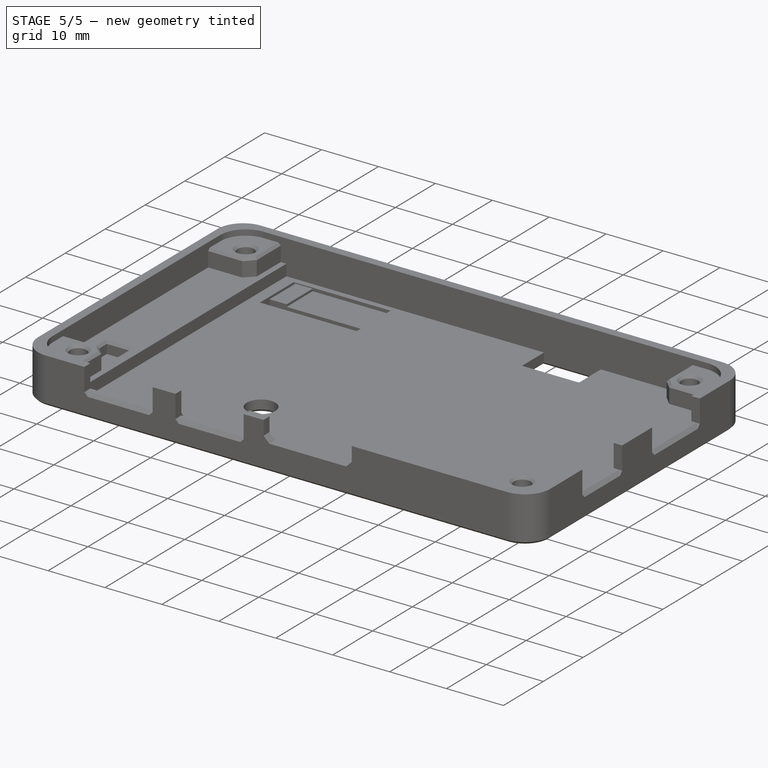
[diagram: stage 5 of 5 — iso view after this stage's code; geometry added in this stage tinted green]
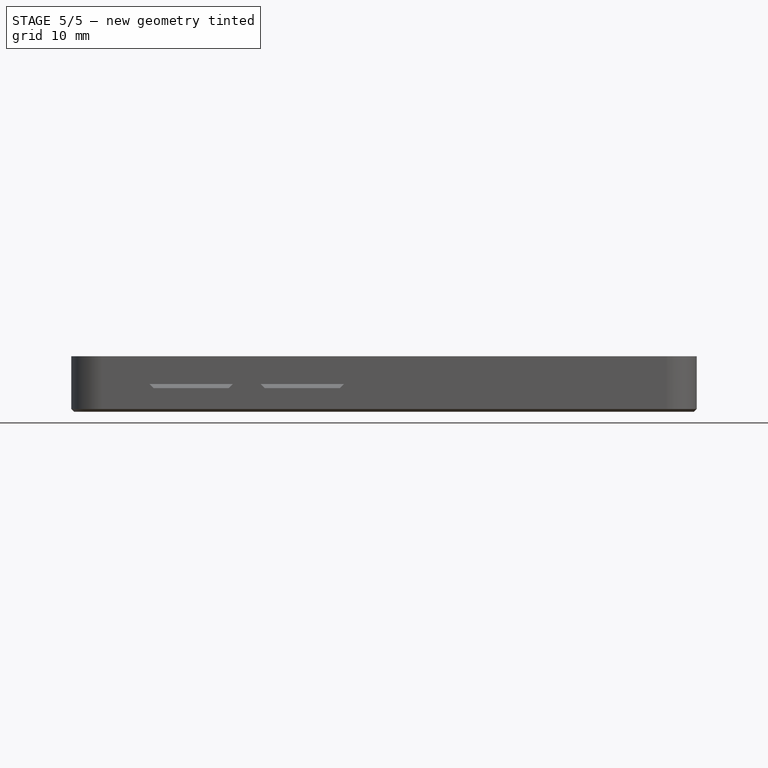
[diagram: stage 5 of 5 — front view after this stage's code; geometry added in this stage tinted green]
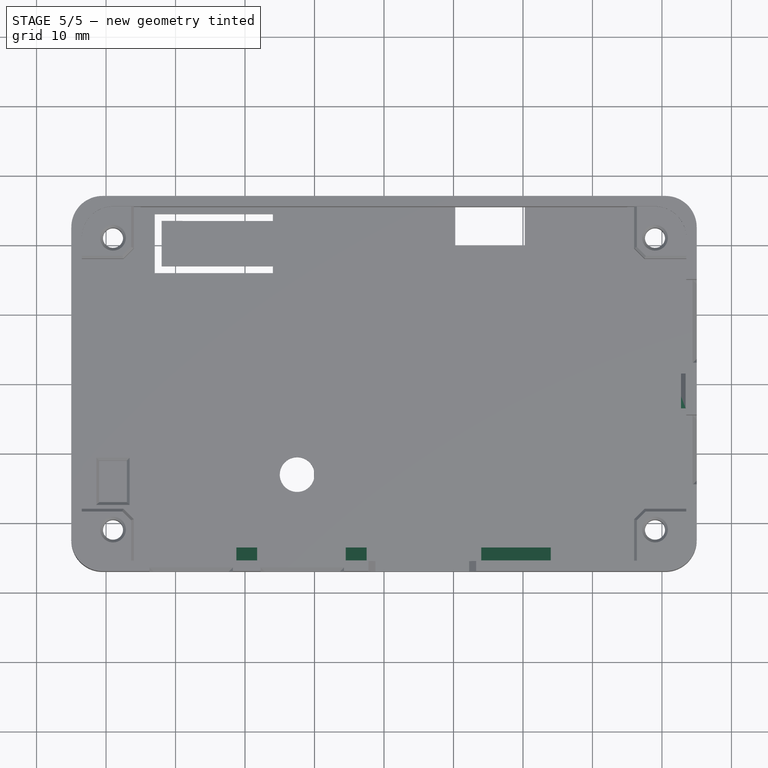
[diagram: stage 5 of 5 — top view after this stage's code; geometry added in this stage tinted green]
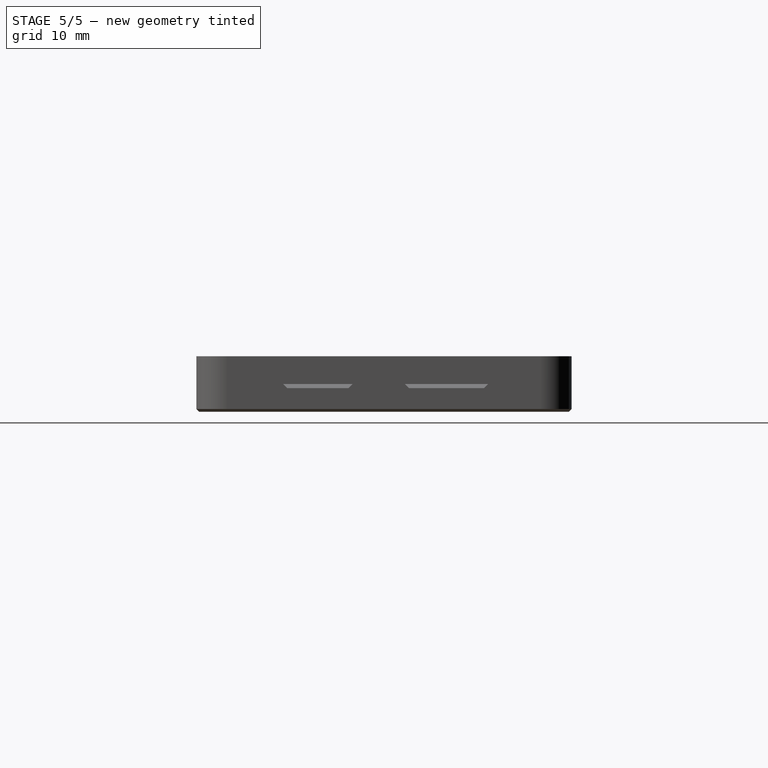
[diagram: stage 5 of 5 — right view after this stage's code; geometry added in this stage tinted green]
FEATURE [PartDesign::Chamfer] Chamfer004  label="Wall_Support_Chamfer_Front"
  Angle = 45
  Base = -> Chamfer003 [Edge125,Edge130,Edge135]
  BaseFeature = -> Chamfer003
  ChamferType = 1
  FlipDirection = false
  Refine = true
  Size = 1.9
  Size2 = 2.9
  SupportTransform = false
  Suppressed = false
  UseAllEdges = false
FEATURE [PartDesign::Chamfer] Chamfer005  label="Wall_Support_Chamfer_Right"
  Angle = 45
  Base = -> Chamfer004 [Edge164]
  BaseFeature = -> Chamfer004
  ChamferType = 1
  FlipDirection = false
  Refine = true
  Size = 2.9
  Size2 = 1.9
  SupportTransform = false
  Suppressed = false
  UseAllEdges = false
FEATURE [PartDesign::Chamfer] Chamfer007  label="Print_Comp_Chamfer_Base"
  Angle = 45
  Base = -> Chamfer005 [Edge239,Edge230,Edge241,Edge228,Edge105,Edge101,Edge90,Edge78,Edge80,Edge88,Edge172,Edge171,Edge167,Edge153,Edge152,Edge148,Edge251,Edge254,Edge106,Edge141,Edge99,Edge102,Edge192,Edge253,Edge184,Edge180,Edge175,Edge178,Edge182,Edge188,Edge252,Edge250,Edge174]
  BaseFeature = -> Chamfer005
  ChamferType = 0
  FlipDirection = false
  Refine = true
  Size = 0.4
  Size2 = 1
  SupportTransform = false
  Suppressed = false
  UseAllEdges = false
FEATURE [PartDesign::Chamfer] Chamfer008  label="Outside_Chamfer_Base"
  Angle = 45
  Base = -> Chamfer007 [Edge217]
  BaseFeature = -> Chamfer007
  ChamferType = 0
  FlipDirection = false
  Refine = true
  Size = 1
  Size2 = 1
  SupportTransform = false
  Suppressed = false
  UseAllEdges = false
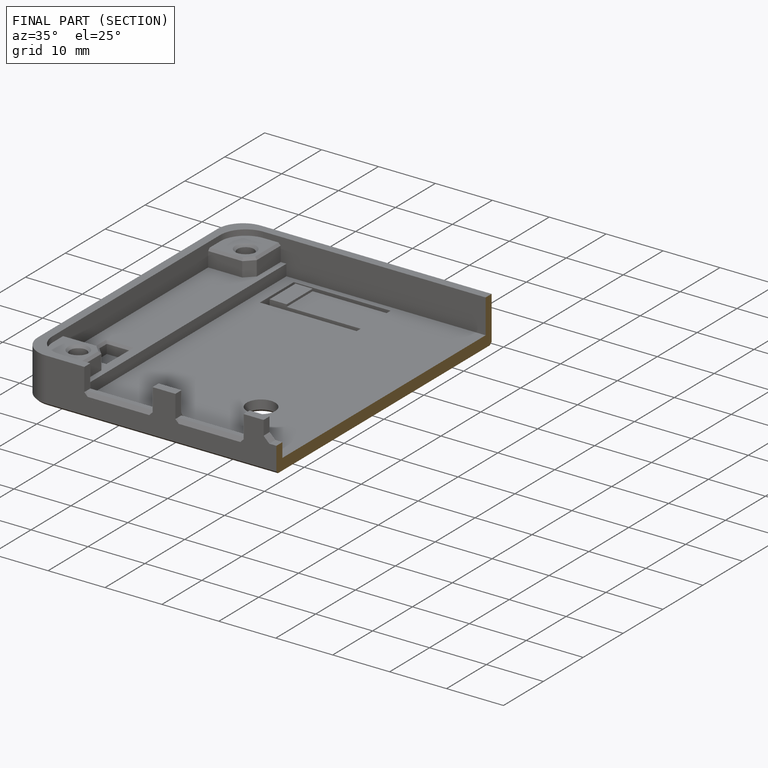
[diagram: finished part — half-section view (interior)]
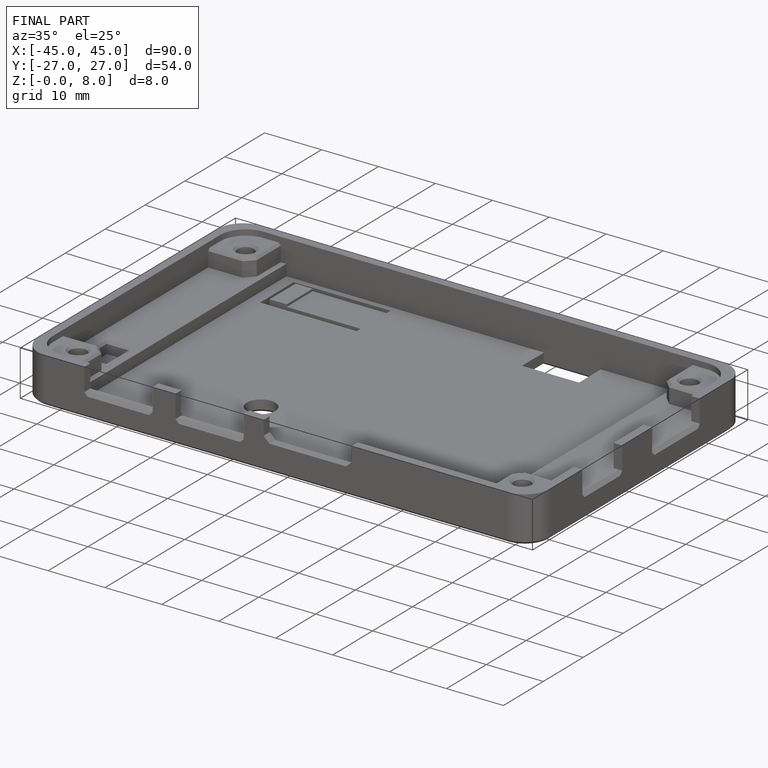
[diagram: finished part — iso view with bounding-box wireframe]
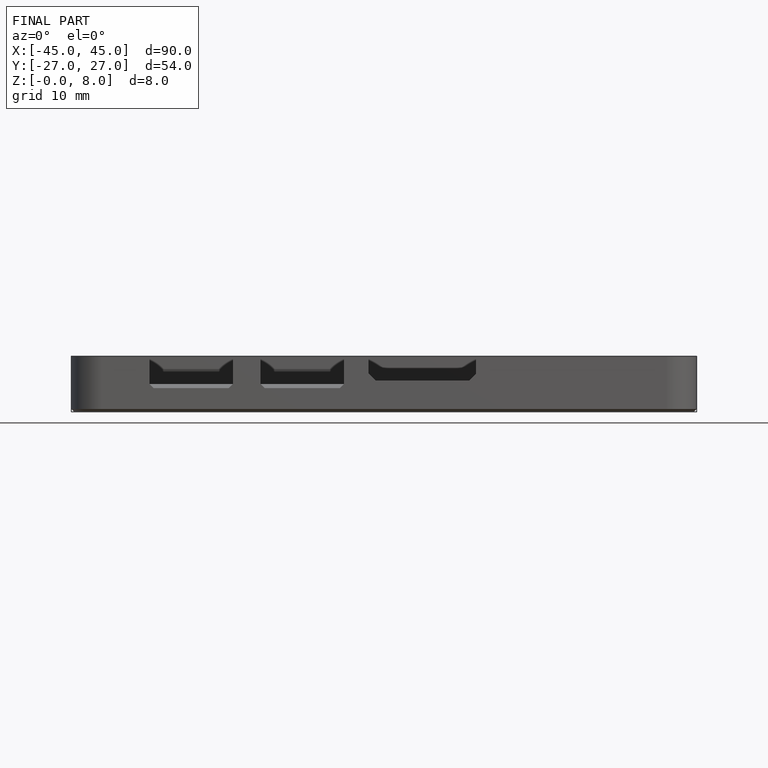
[diagram: finished part — front view with bounding-box wireframe]
